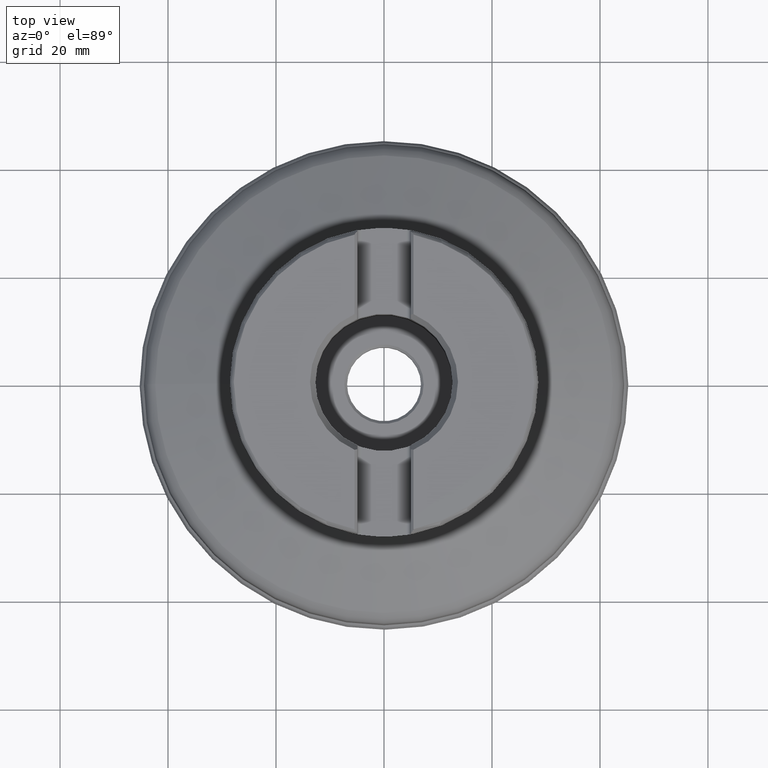
[diagram: clean part render]
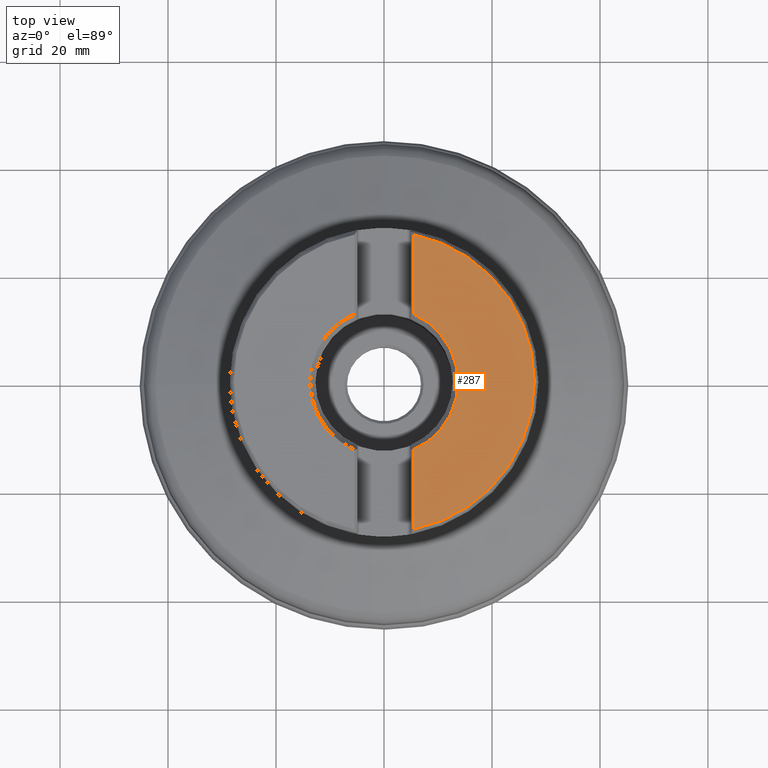
[diagram: same view with one face highlighted and labeled with its STEP entity id]
A machine part, top view. The second image highlights one B-rep face of the part: STEP entity #287.
In plain terms, the highlighted planar face has unit normal (-0, 0, -1).
Its self-contained STEP definition (entity closure, byte-faithful):
#164=PLANE('',#1103);
#182=FACE_OUTER_BOUND('',#464,.T.);
#219=LINE('',#1912,#255);
#220=LINE('',#1916,#256);
#255=VECTOR('',#1242,1.);
#256=VECTOR('',#1245,1.);
#287=ADVANCED_FACE('',(#182),#164,.F.);
#464=EDGE_LOOP('',(#613,#614,#615,#616));
#613=ORIENTED_EDGE('',*,*,#902,.T.);
#614=ORIENTED_EDGE('',*,*,#908,.T.);
#615=ORIENTED_EDGE('',*,*,#909,.T.);
#616=ORIENTED_EDGE('',*,*,#910,.T.);
#814=VERTEX_POINT('',#1884);
#815=VERTEX_POINT('',#1886);
#819=VERTEX_POINT('',#1913);
#820=VERTEX_POINT('',#1915);
#902=EDGE_CURVE('',#815,#814,#986,.T.);
#908=EDGE_CURVE('',#814,#819,#219,.T.);
#909=EDGE_CURVE('',#819,#820,#988,.T.);
#910=EDGE_CURVE('',#820,#815,#220,.T.);
#986=CIRCLE('',#1098,27.8233314773548);
#988=CIRCLE('',#1102,13.7);
#1098=AXIS2_PLACEMENT_3D('',#1885,#1232,#1233);
#1102=AXIS2_PLACEMENT_3D('',#1914,#1243,#1244);
#1103=AXIS2_PLACEMENT_3D('',#1917,#1246,#1247);
#1232=DIRECTION('',(1.17145536458252E-15,0.,1.));
#1233=DIRECTION('',(-1.,0.,1.24695597821468E-15));
#1242=DIRECTION('',(0.,-1.,0.));
#1243=DIRECTION('',(-1.17145536458252E-15,0.,-1.));
#1244=DIRECTION('',(-1.,0.,1.01297721224923E-15));
#1245=DIRECTION('',(0.,-1.,0.));
#1246=DIRECTION('',(-1.17145536458252E-15,0.,-1.));
#1247=DIRECTION('',(-1.,0.,1.17267306976032E-15));
#1884=CARTESIAN_POINT('',(5.46570000000005,27.2812004502874,44.45));
#1885=CARTESIAN_POINT('',(5.20711909556932E-14,0.,44.45));
#1886=CARTESIAN_POINT('',(5.46570000000005,-27.2812004502874,44.45));
#1912=CARTESIAN_POINT('',(5.46570000000005,12.7683915788168,44.45));
#1913=CARTESIAN_POINT('',(5.46570000000005,12.5624887466616,44.45));
#1914=CARTESIAN_POINT('',(5.20711909556932E-14,0.,44.45));
#1915=CARTESIAN_POINT('',(5.46570000000005,-12.5624887466616,44.45));
#1916=CARTESIAN_POINT('',(5.46570000000005,-27.3766250295533,44.45));
#1917=CARTESIAN_POINT('',(5.20711909556932E-14,0.,44.45));